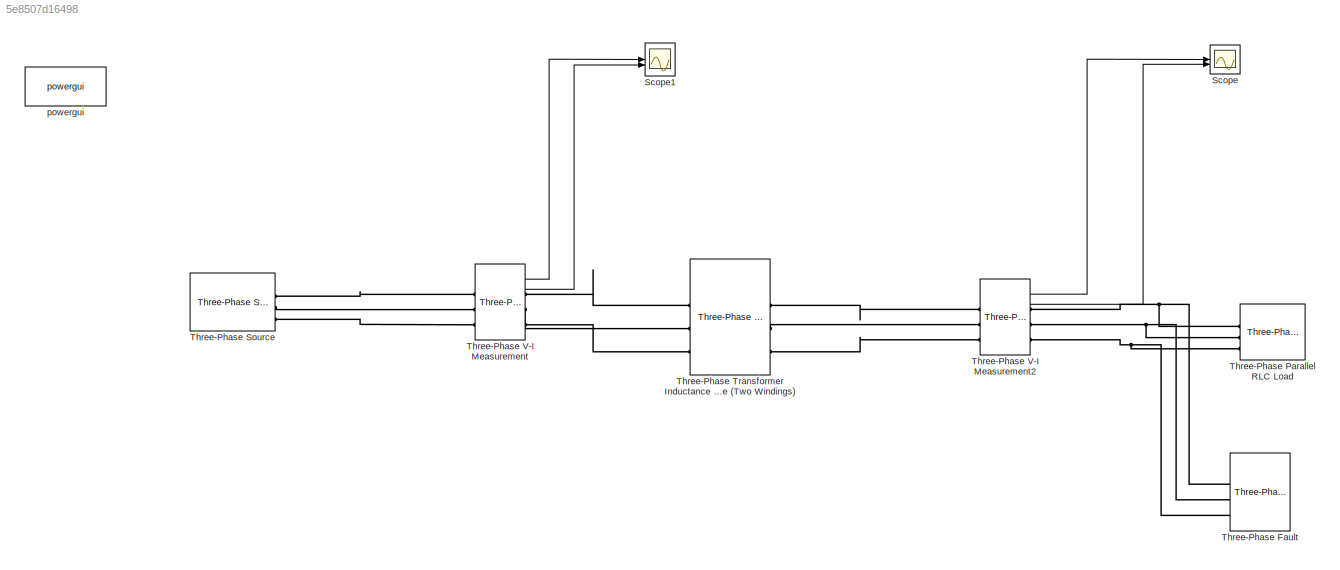
MODEL slx_5e8507d16498
KIND model
CONFIG AbsTol = auto
CONFIG EnableMultiTasking = on
CONFIG FixedStep = auto
CONFIG MaxStep = 0.2
CONFIG MinStep = auto
CONFIG RelTol = 1e-4
CONFIG SampleTimeConstraint = Unconstrained
CONFIG SolverName = VariableStepAuto
CONFIG StartTime = 0.0
CONFIG StopTime = 1
BLOCK [Scope] Scope
  ActiveDisplayYMaximum = 229266.55338982304
  ActiveDisplayYMinimum = -72723.995710674964
  Floating = off
  GraphicalSettings = {"AxesScalingProperties":{"AlignXAxis":"Center","AlignYAxis":"Center","AutoScaleXAxisLimits":false,"AxesScaling":"Manual","AxesScalingNumUpdates":10,"ExpandOnly":true,"ScaleAxesLimitsAtStop":false,"XAxisDataRange":100,"YAxisDataRange":80},"DisplayProperties":{"ColorOrder":["auto","auto","auto","auto","auto","auto","auto","auto","auto","auto","auto","auto","auto","auto","auto","auto","auto","auto",...<+2845ch>
  MultipleDisplayCache = [{"MaxYLimMag":238543.03540820765,"MaxYLimReal":229266.55338982304,"MinYLimMag":0,"MinYLimReal":-72723.995710674964,"PlotAsMagnitudePhase":false,"ShowGrid":true,"ShowLegend":false,"Title":"%<SignalLabel>","YLabel":""}]
  NumInputPorts = 2
  ScopeFrameLocation = window
  WasSavedAsWebScope = on
  WindowPosition = [488.000000,222.000000,560.000000,420.000000,]
BLOCK [Scope] Scope1
  ActiveDisplayYMaximum = 761014.216593697
  ActiveDisplayYMinimum = -246440.07651022513
  DataLoggingVariableName = ScopeData1
  Floating = off
  GraphicalSettings = {"AxesScalingProperties":{"AlignXAxis":"Center","AlignYAxis":"Center","AutoScaleXAxisLimits":false,"AxesScaling":"Manual","AxesScalingNumUpdates":10,"ExpandOnly":true,"ScaleAxesLimitsAtStop":false,"XAxisDataRange":100,"YAxisDataRange":80},"DisplayProperties":{"ColorOrder":["auto","auto","auto","auto","auto","auto","auto","auto","auto","auto","auto","auto","auto","auto","auto","auto","auto","auto",...<+2426ch>
  MultipleDisplayCache = [{"MaxYLimMag":659753.37320432637,"MaxYLimReal":761014.216593697,"MinYLimMag":0,"MinYLimReal":-246440.07651022513,"PlotAsMagnitudePhase":false,"ShowGrid":true,"ShowLegend":false,"Title":"%<SignalLabel>","YLabel":""}]
  NumInputPorts = 2
  ScopeFrameLocation = window
  WasSavedAsWebScope = on
  WindowPosition = [488.000000,222.000000,560.000000,420.000000,]
BLOCK [Reference] Three-Phase Fault  REF=spsThreePhaseFaultLib/Three-Phase Fault
  LibrarySourceBlock = sps_lib/Power Grid Elements/Three-Phase Fault
  SourceBlock = spsThreePhaseFaultLib/Three-Phase Fault
  SourceType = Three-Phase Fault
BLOCK [Reference] Three-Phase Parallel RLC Load  REF=spsThreePhaseParallelRLCLoadLib/Three-Phase
Parallel RLC Load
  AttributesFormatString = \n
  LibrarySourceBlock = sps_lib/Passives/Three-Phase\nParallel RLC Load
  NameLocation = right
  SourceBlock = spsThreePhaseParallelRLCLoadLib/Three-Phase\nParallel RLC Load
  SourceType = Three-Phase Parallel RLC Load
BLOCK [Reference] Three-Phase Source  REF=spsThreePhaseSourceLib/Three-Phase Source
  LibrarySourceBlock = sps_lib/Sources/Three-Phase Source
  SourceBlock = spsThreePhaseSourceLib/Three-Phase Source
  SourceType = Three-Phase Source
BLOCK [Reference] Three-Phase Transformer Inductance Matrix Type (Two Windings)  REF=spsThreePhaseTransformerInductanceMatrixTypeTwoWindingsLib/Three-Phase Transformer
Inductance Matrix Type
(Two Windings)
  LibrarySourceBlock = sps_lib/Power Grid Elements/Three-Phase Transformer\nInductance Matrix Type\n(Two Windings)
  SourceBlock = spsThreePhaseTransformerInductanceMatrixTypeTwoWindingsLib/Three-Phase Transformer\nInductance Matrix Type\n(Two Windings)
  SourceType = Three-Phase Transformer Inductance MatrixType (Two Windings)
BLOCK [Reference] Three-Phase V-I Measurement  REF=spsThreePhaseVIMeasurementLib/Three-Phase
V-I Measurement
  SourceBlock = spsThreePhaseVIMeasurementLib/Three-Phase\nV-I Measurement
  SourceType = Three-Phase VI Measurement
BLOCK [Reference] Three-Phase V-I Measurement2  REF=spsThreePhaseVIMeasurementLib/Three-Phase
V-I Measurement
  SourceBlock = spsThreePhaseVIMeasurementLib/Three-Phase\nV-I Measurement
  SourceType = Three-Phase VI Measurement
BLOCK [Reference] powergui  REF=sps_lib/powergui
  LibrarySourceBlock = sps_lib/powergui
  Priority = 1
  SourceBlock = sps_lib/powergui
  SourceType = PSB option menu block
LINE Three-Phase V-I Measurement2:1 -> Scope:1
LINE Three-Phase V-I Measurement2:2 -> Scope:2
LINE Three-Phase V-I Measurement:1 -> Scope1:1
LINE Three-Phase V-I Measurement:2 -> Scope1:2
PNET net1: Three-Phase Fault:LConn1 -- Three-Phase Parallel RLC Load:LConn1 -- Three-Phase V-I Measurement2:RConn1
PNET net2: Three-Phase Fault:LConn2 -- Three-Phase Parallel RLC Load:LConn2 -- Three-Phase V-I Measurement2:RConn2
PNET net3: Three-Phase Fault:LConn3 -- Three-Phase Parallel RLC Load:LConn3 -- Three-Phase V-I Measurement2:RConn3
PLINE Three-Phase Source:RConn1 -- Three-Phase V-I Measurement:LConn1
PLINE Three-Phase Source:RConn2 -- Three-Phase V-I Measurement:LConn2
PLINE Three-Phase Source:RConn3 -- Three-Phase V-I Measurement:LConn3
PLINE Three-Phase Transformer Inductance Matrix Type (Two Windings):LConn1 -- Three-Phase V-I Measurement:RConn1
PLINE Three-Phase Transformer Inductance Matrix Type (Two Windings):LConn2 -- Three-Phase V-I Measurement:RConn2
PLINE Three-Phase Transformer Inductance Matrix Type (Two Windings):LConn3 -- Three-Phase V-I Measurement:RConn3
PLINE Three-Phase Transformer Inductance Matrix Type (Two Windings):RConn1 -- Three-Phase V-I Measurement2:LConn1
PLINE Three-Phase Transformer Inductance Matrix Type (Two Windings):RConn2 -- Three-Phase V-I Measurement2:LConn2
PLINE Three-Phase Transformer Inductance Matrix Type (Two Windings):RConn3 -- Three-Phase V-I Measurement2:LConn3
note: PNET lines group multi-terminal physical nets as a canonical sorted terminal list (undirected conserving connections); 2-terminal nets keep the pairwise PLINE form
